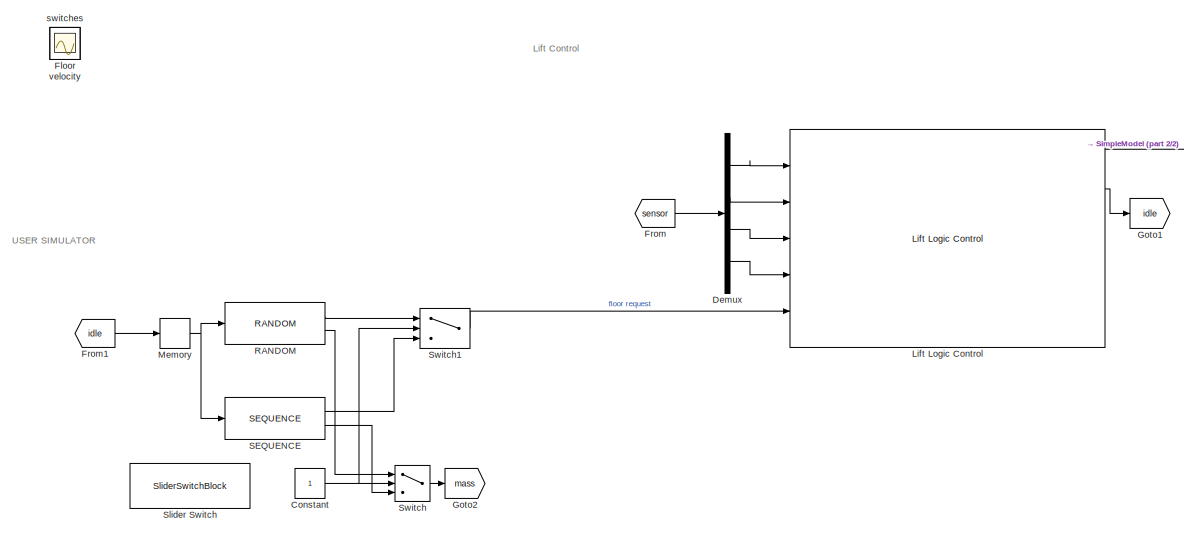
[diagram: root canvas - part 1/2, middle left region]
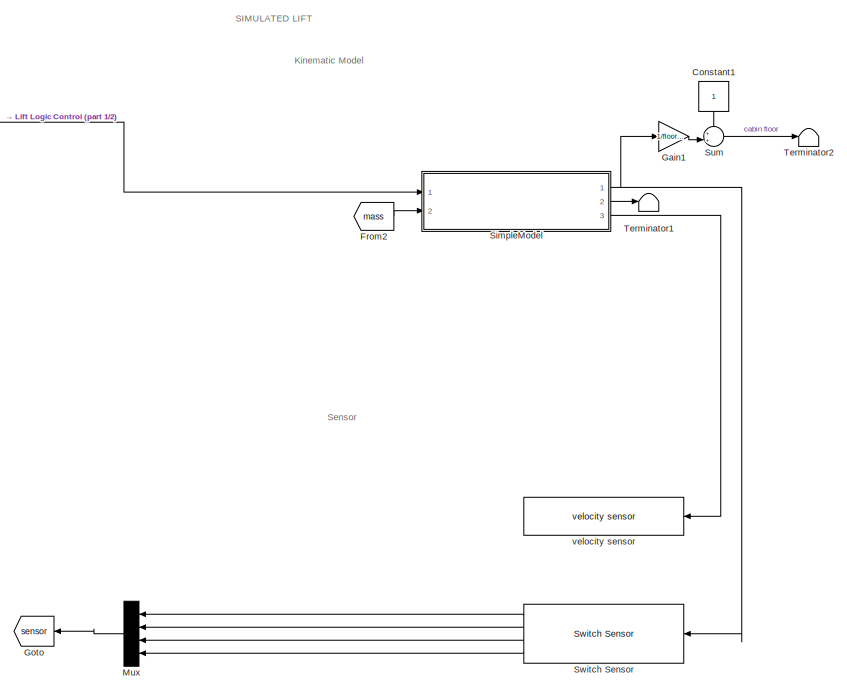
[diagram: root canvas - part 2/2, right side, full height]
MODEL slx_2e45fcdf0b3d
KIND model
CONFIG AbsTol = auto
CONFIG EnableMultiTasking = off
CONFIG FixedStep = auto
CONFIG MaxStep = auto
CONFIG MinStep = auto
CONFIG RelTol = 1e-3
CONFIG SampleTimeConstraint = Unconstrained
CONFIG SolverName = VariableStepAuto
CONFIG StartTime = 0.0
CONFIG StopTime = 180
BLOCK [Constant] Constant
BLOCK [Constant] Constant1
  NameLocation = left
BLOCK [Demux] Demux
  Ports = [1, 4]
BLOCK [Scope] Floor
  Floating = off
  IOType = viewer
  NumInputPorts = 1
  Ports = []
  ScopeSpecificationString = Simulink.scopes.TimeScopeBlockCfg('CurrentConfiguration', extmgr.ConfigurationSet(extmgr.Configuration('Core','General UI',true,'FigureColor',[1 1 1]),extmgr.Configuration('Core','Source UI',true),extmgr.Configuration('Sources','WiredSimulink',true,'DataLoggingVariableName','ScopeData1'),extmgr.Configuration('Visuals','Time Domain',true,'SerializedDisplays',{struct('MinYLimReal','-1.125','MaxYLimR...<+1801ch>
BLOCK [From] From
  GotoTag = sensor
BLOCK [From] From1
  GotoTag = idle
BLOCK [From] From2
  GotoTag = mass
BLOCK [Gain] Gain1
  Gain = 1/floor_height
BLOCK [Goto] Goto
  GotoTag = sensor
  NameLocation = top
BLOCK [Goto] Goto1
  GotoTag = idle
BLOCK [Goto] Goto2
  GotoTag = mass
BLOCK [Reference] Lift Logic Control  REF=LiftMotionControlLibrary/Lift Logic Control
  Ports = [5, 10]
  SourceBlock = LiftMotionControlLibrary/Lift Logic Control
BLOCK [Memory] Memory
BLOCK [Mux] Mux
  DisplayOption = bar
  NameLocation = top
  Ports = [4, 1]
BLOCK [Reference] RANDOM   REF=LiftMotionControlLibrary/RANDOM
  Ports = [1, 2]
  SourceBlock = LiftMotionControlLibrary/RANDOM
  SourceType = SubSystem
BLOCK [Reference] SEQUENCE   REF=LiftMotionControlLibrary/SEQUENCE
  Ports = [1, 2]
  SourceBlock = LiftMotionControlLibrary/SEQUENCE
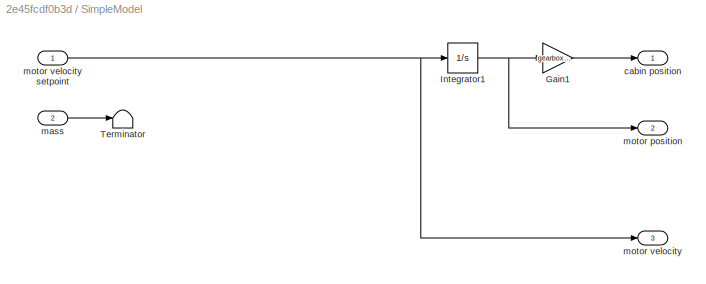
BLOCK [SubSystem] SimpleModel
  Ports = [2, 3]
  RequestExecContextInheritance = off
BLOCK [Gain] SimpleModel/Gain1
  Gain = gearbox*Rp
BLOCK [Integrator] SimpleModel/Integrator1
  Ports = [1, 1]
BLOCK [Terminator] SimpleModel/Terminator
BLOCK [Outport] SimpleModel/cabin position
  NameLocation = top
BLOCK [Inport] SimpleModel/mass
  Port = 2
BLOCK [Outport] SimpleModel/motor position
  NameLocation = top
  Port = 2
BLOCK [Outport] SimpleModel/motor velocity
  NameLocation = top
  Port = 3
BLOCK [Inport] SimpleModel/motor velocity setpoint
BLOCK [SliderSwitchBlock] Slider Switch
BLOCK [Sum] Sum
  Inputs = ++|
  Ports = [2, 1]
BLOCK [Switch] Switch
  Criteria = u2 > Threshold
  InputSameDT = off
  SaturateOnIntegerOverflow = off
BLOCK [Reference] Switch Sensor  REF=LiftMotionControlLibrary/Switch Sensor
  NameLocation = top
  Ports = [1, 4]
  SourceBlock = LiftMotionControlLibrary/Switch Sensor
BLOCK [Switch] Switch1
  Criteria = u2 > Threshold
  InputSameDT = off
  SaturateOnIntegerOverflow = off
BLOCK [Terminator] Terminator1
BLOCK [Terminator] Terminator2
BLOCK [Scope] switches
  Floating = off
  IOType = viewer
  NumInputPorts = 1
  Ports = []
  ScopeSpecificationString = Simulink.scopes.TimeScopeBlockCfg('CurrentConfiguration', extmgr.ConfigurationSet(extmgr.Configuration('Core','General UI',true),extmgr.Configuration('Core','Source UI',true),extmgr.Configuration('Sources','WiredSimulink',true,'DataLoggingVariableName','ScopeData1'),extmgr.Configuration('Visuals','Time Domain',true,'SerializedDisplays',{struct('MinYLimReal','-2.375','MaxYLimReal','11.375','YLabelR...<+1503ch>
BLOCK [Scope] velocity
  Floating = off
  IOType = viewer
  NumInputPorts = 1
  Ports = []
  ScopeSpecificationString = Simulink.scopes.TimeScopeBlockCfg('CurrentConfiguration', extmgr.ConfigurationSet(extmgr.Configuration('Core','General UI',true,'FigureColor',[1 1 1]),extmgr.Configuration('Core','Source UI',true),extmgr.Configuration('Sources','WiredSimulink',true,'DataLoggingVariableName','ScopeData3'),extmgr.Configuration('Visuals','Time Domain',true,'SerializedDisplays',{struct('MinYLimReal','-0.40782','MaxYLi...<+1682ch>
BLOCK [Reference] velocity sensor  REF=LiftMotionControlLibrary/velocity sensor
  NameLocation = top
  Ports = [1, 1]
  SourceBlock = LiftMotionControlLibrary/velocity sensor
  SourceType = SubSystem
ANNOTATION (root): Kinematic Model
ANNOTATION (root): Lift Control
ANNOTATION (root): SIMULATED LIFT
ANNOTATION (root): Sensor
ANNOTATION (root): USER SIMULATOR
LINE Constant1:1 -> Sum:1
NET Constant:1 -> Switch1:2, Switch:2
LINE Demux:1 -> Lift Logic Control:1
LINE Demux:2 -> Lift Logic Control:2
LINE Demux:3 -> Lift Logic Control:3
LINE Demux:4 -> Lift Logic Control:4
LINE From1:1 -> Memory:1
LINE From2:1 -> SimpleModel:2
LINE From:1 -> Demux:1
LINE Gain1:1 -> Sum:2
LINE Lift Logic Control:1 -> SimpleModel:1
LINE Lift Logic Control:3 -> Goto1:1
NET Memory:1 -> RANDOM :1, SEQUENCE :1
LINE Mux:1 -> Goto:1
LINE RANDOM :1 -> Switch1:1
LINE RANDOM :2 -> Switch:1
LINE SEQUENCE :1 -> Switch1:3
LINE SEQUENCE :2 -> Switch:3
LINE SimpleModel/Gain1:1 -> SimpleModel/cabin position:1
NET SimpleModel/Integrator1:1 -> SimpleModel/Gain1:1, SimpleModel/motor position:1
LINE SimpleModel/mass:1 -> SimpleModel/Terminator:1
NET SimpleModel/motor velocity setpoint:1 -> SimpleModel/Integrator1:1, SimpleModel/motor velocity:1
NET SimpleModel:1 -> Gain1:1, Switch Sensor:1
LINE SimpleModel:2 -> Terminator1:1
LINE SimpleModel:3 -> velocity sensor:1
LINE Sum:1 -> Terminator2:1
LINE Switch Sensor:1 -> Mux:1
LINE Switch Sensor:2 -> Mux:2
LINE Switch Sensor:3 -> Mux:3
LINE Switch Sensor:4 -> Mux:4
LINE Switch1:1 -> Lift Logic Control:5
LINE Switch:1 -> Goto2:1
note: NET lines group one-source signal fan-out (src -> all destinations, sorted); 1:1 wires keep LINE
